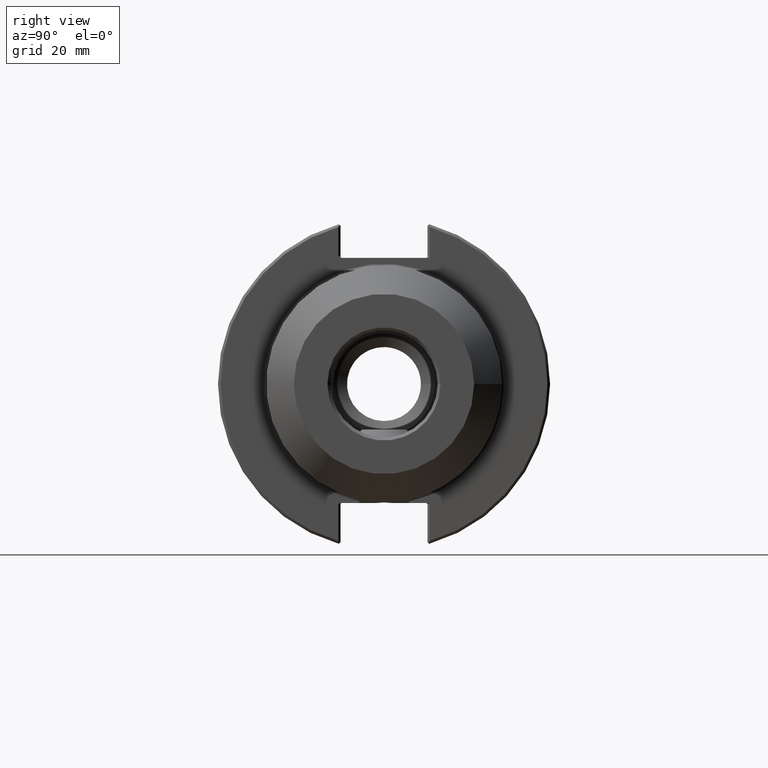
[diagram: clean part render]
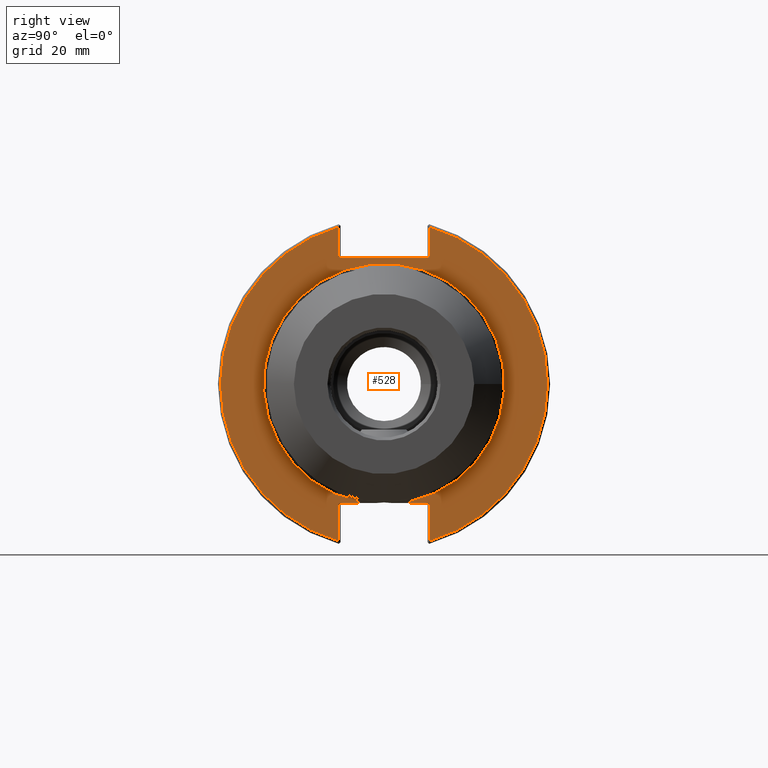
[diagram: same view with one face highlighted and labeled with its STEP entity id]
A machine part, right view. The second image highlights one B-rep face of the part: STEP entity #528.
In plain terms, the highlighted planar face has unit normal (1, 0, 0).
Its self-contained STEP definition (entity closure, byte-faithful):
#154=CARTESIAN_POINT('',(0.75,0.303438626413975,-1.388));
#155=VERTEX_POINT('',#154);
#163=CARTESIAN_POINT('',(0.75,0.287024310128432,-1.375369784965228));
#164=VERTEX_POINT('',#163);
#165=CARTESIAN_POINT('',(0.75,0.287024310128432,-1.375369784965228));
#166=CARTESIAN_POINT('',(0.75,0.295096385845236,-1.381509338411812));
#167=CARTESIAN_POINT('',(0.75,0.303438626413975,-1.388));
#175=(BOUNDED_CURVE()B_SPLINE_CURVE(2,(#165,#166,#167),.UNSPECIFIED.,.F.,.U.)B_SPLINE_CURVE_WITH_KNOTS((3,3),(0.16008298010447,0.209329730461104),.UNSPECIFIED.)CURVE()GEOMETRIC_REPRESENTATION_ITEM()RATIONAL_B_SPLINE_CURVE((1.001487138395058,1.000972315355426,1.0))REPRESENTATION_ITEM(''));
#176=EDGE_CURVE('',#164,#155,#175,.T.);
#208=CARTESIAN_POINT('',(0.75,-0.287024310128432,-1.375369784965228));
#209=VERTEX_POINT('',#208);
#221=CARTESIAN_POINT('',(0.75,-0.303438626413975,-1.388));
#222=VERTEX_POINT('',#221);
#223=CARTESIAN_POINT('',(0.75,-0.303438626413975,-1.388));
#224=CARTESIAN_POINT('',(0.75,-0.295096385845236,-1.381509338411813));
#225=CARTESIAN_POINT('',(0.75,-0.287024310128432,-1.375369784965228));
#233=(BOUNDED_CURVE()B_SPLINE_CURVE(2,(#223,#224,#225),.UNSPECIFIED.,.F.,.U.)B_SPLINE_CURVE_WITH_KNOTS((3,3),(0.0,0.049246750356633),.UNSPECIFIED.)CURVE()GEOMETRIC_REPRESENTATION_ITEM()RATIONAL_B_SPLINE_CURVE((1.0,1.000972315355426,1.001487138395058))REPRESENTATION_ITEM(''));
#234=EDGE_CURVE('',#222,#209,#233,.T.);
#302=CARTESIAN_POINT('',(0.75,0.0,0.0));
#303=DIRECTION('',(1.0,0.0,0.0));
#304=DIRECTION('',(0.0,-1.0,0.0));
#305=AXIS2_PLACEMENT_3D('',#302,#303,#304);
#306=CIRCLE('',#305,1.405);
#307=EDGE_CURVE('',#164,#209,#306,.T.);
#375=CARTESIAN_POINT('',(0.75,-0.504215728752254,-1.388));
#376=VERTEX_POINT('',#375);
#377=CARTESIAN_POINT('',(0.75,-0.504215728752254,-1.388));
#378=DIRECTION('',(0.0,1.0,0.0));
#379=VECTOR('',#378,0.200777102338278);
#380=LINE('',#377,#379);
#381=EDGE_CURVE('',#376,#222,#380,.T.);
#417=CARTESIAN_POINT('',(0.75,1.65625,0.0));
#418=DIRECTION('',(1.0,0.0,0.0));
#419=DIRECTION('',(0.0,0.0,-1.0));
#420=AXIS2_PLACEMENT_3D('',#417,#418,#419);
#421=PLANE('',#420);
#422=ORIENTED_EDGE('',*,*,#176,.T.);
#423=CARTESIAN_POINT('',(0.75,0.504215728752823,-1.388));
#424=VERTEX_POINT('',#423);
#425=CARTESIAN_POINT('',(0.75,0.303438626413975,-1.388));
#426=DIRECTION('',(0.0,1.0,0.0));
#427=VECTOR('',#426,0.200777102338847);
#428=LINE('',#425,#427);
#429=EDGE_CURVE('',#155,#424,#428,.T.);
#430=ORIENTED_EDGE('',*,*,#429,.T.);
#431=CARTESIAN_POINT('',(0.75,0.532500000000284,-1.408));
#432=VERTEX_POINT('',#431);
#433=CARTESIAN_POINT('',(0.75,0.504215728752823,-1.408));
#434=DIRECTION('',(1.0,0.0,0.0));
#435=DIRECTION('',(0.0,1.0,0.0));
#436=AXIS2_PLACEMENT_3D('',#433,#434,#435);
#437=ELLIPSE('',#436,0.028284271247462,0.02);
#438=EDGE_CURVE('',#432,#424,#437,.T.);
#439=ORIENTED_EDGE('',*,*,#438,.F.);
#440=CARTESIAN_POINT('',(0.75,0.532500000000284,-1.831665908401337));
#441=VERTEX_POINT('',#440);
#442=CARTESIAN_POINT('',(0.75,0.532500000000284,-1.831665908401337));
#443=DIRECTION('',(0.0,0.0,1.0));
#444=VECTOR('',#443,0.423665908401337);
#445=LINE('',#442,#444);
#446=EDGE_CURVE('',#441,#432,#445,.T.);
#447=ORIENTED_EDGE('',*,*,#446,.F.);
#448=CARTESIAN_POINT('',(0.75,0.532500000000179,1.831665908401368));
#449=VERTEX_POINT('',#448);
#450=CARTESIAN_POINT('',(0.75,0.0,0.0));
#451=DIRECTION('',(-1.0,0.0,0.0));
#452=DIRECTION('',(0.0,1.0,0.0));
#453=AXIS2_PLACEMENT_3D('',#450,#451,#452);
#454=CIRCLE('',#453,1.9075);
#455=EDGE_CURVE('',#449,#441,#454,.T.);
#456=ORIENTED_EDGE('',*,*,#455,.F.);
#457=CARTESIAN_POINT('',(0.75,0.532500000000179,1.492000000000001));
#458=VERTEX_POINT('',#457);
#459=CARTESIAN_POINT('',(0.75,0.532500000000179,1.492000000000001));
#460=DIRECTION('',(0.0,0.0,1.0));
#461=VECTOR('',#460,0.339665908401367);
#462=LINE('',#459,#461);
#463=EDGE_CURVE('',#458,#449,#462,.T.);
#464=ORIENTED_EDGE('',*,*,#463,.F.);
#465=CARTESIAN_POINT('',(0.75,0.504215728752717,1.472000000000001));
#466=VERTEX_POINT('',#465);
#467=CARTESIAN_POINT('',(0.75,0.504215728752717,1.492000000000001));
#468=DIRECTION('',(1.0,0.0,0.0));
#469=DIRECTION('',(0.0,1.0,0.0));
#470=AXIS2_PLACEMENT_3D('',#467,#468,#469);
#471=ELLIPSE('',#470,0.028284271247462,0.02);
#472=EDGE_CURVE('',#466,#458,#471,.T.);
#473=ORIENTED_EDGE('',*,*,#472,.F.);
#474=CARTESIAN_POINT('',(0.75,-0.504215728752359,1.472000000000001));
#475=VERTEX_POINT('',#474);
#476=CARTESIAN_POINT('',(0.75,0.504215728752717,1.472000000000001));
#477=DIRECTION('',(0.0,-1.0,0.0));
#478=VECTOR('',#477,1.008431457505076);
#479=LINE('',#476,#478);
#480=EDGE_CURVE('',#466,#475,#479,.T.);
#481=ORIENTED_EDGE('',*,*,#480,.T.);
#482=CARTESIAN_POINT('',(0.75,-0.532499999999821,1.492000000000001));
#483=VERTEX_POINT('',#482);
#484=CARTESIAN_POINT('',(0.75,-0.504215728752359,1.492000000000001));
#485=DIRECTION('',(1.0,0.0,0.0));
#486=DIRECTION('',(0.0,-1.0,0.0));
#487=AXIS2_PLACEMENT_3D('',#484,#485,#486);
#488=ELLIPSE('',#487,0.028284271247462,0.02);
#489=EDGE_CURVE('',#483,#475,#488,.T.);
#490=ORIENTED_EDGE('',*,*,#489,.F.);
#491=CARTESIAN_POINT('',(0.75,-0.532499999999821,1.831665908401472));
#492=VERTEX_POINT('',#491);
#493=CARTESIAN_POINT('',(0.75,-0.532499999999821,1.831665908401472));
#494=DIRECTION('',(0.0,0.0,-1.0));
#495=VECTOR('',#494,0.339665908401471);
#496=LINE('',#493,#495);
#497=EDGE_CURVE('',#492,#483,#496,.T.);
#498=ORIENTED_EDGE('',*,*,#497,.F.);
#499=CARTESIAN_POINT('',(0.75,-0.532499999999716,-1.831665908401503));
#500=VERTEX_POINT('',#499);
#501=CARTESIAN_POINT('',(0.75,0.0,0.0));
#502=DIRECTION('',(-1.0,0.0,0.0));
#503=DIRECTION('',(0.0,-1.0,0.0));
#504=AXIS2_PLACEMENT_3D('',#501,#502,#503);
#505=CIRCLE('',#504,1.9075);
#506=EDGE_CURVE('',#500,#492,#505,.T.);
#507=ORIENTED_EDGE('',*,*,#506,.F.);
#508=CARTESIAN_POINT('',(0.75,-0.532499999999716,-1.408));
#509=VERTEX_POINT('',#508);
#510=CARTESIAN_POINT('',(0.75,-0.532499999999716,-1.408));
#511=DIRECTION('',(0.0,0.0,-1.0));
#512=VECTOR('',#511,0.423665908401503);
#513=LINE('',#510,#512);
#514=EDGE_CURVE('',#509,#500,#513,.T.);
#515=ORIENTED_EDGE('',*,*,#514,.F.);
#516=CARTESIAN_POINT('',(0.75,-0.504215728752254,-1.408));
#517=DIRECTION('',(1.0,0.0,0.0));
#518=DIRECTION('',(0.0,-1.0,0.0));
#519=AXIS2_PLACEMENT_3D('',#516,#517,#518);
#520=ELLIPSE('',#519,0.028284271247462,0.02);
#521=EDGE_CURVE('',#376,#509,#520,.T.);
#522=ORIENTED_EDGE('',*,*,#521,.F.);
#523=ORIENTED_EDGE('',*,*,#381,.T.);
#524=ORIENTED_EDGE('',*,*,#234,.T.);
#525=ORIENTED_EDGE('',*,*,#307,.F.);
#526=EDGE_LOOP('',(#422,#430,#439,#447,#456,#464,#473,#481,#490,#498,#507,#515,#522,#523,#524,#525));
#527=FACE_OUTER_BOUND('',#526,.T.);
#528=ADVANCED_FACE('',(#527),#421,.T.);